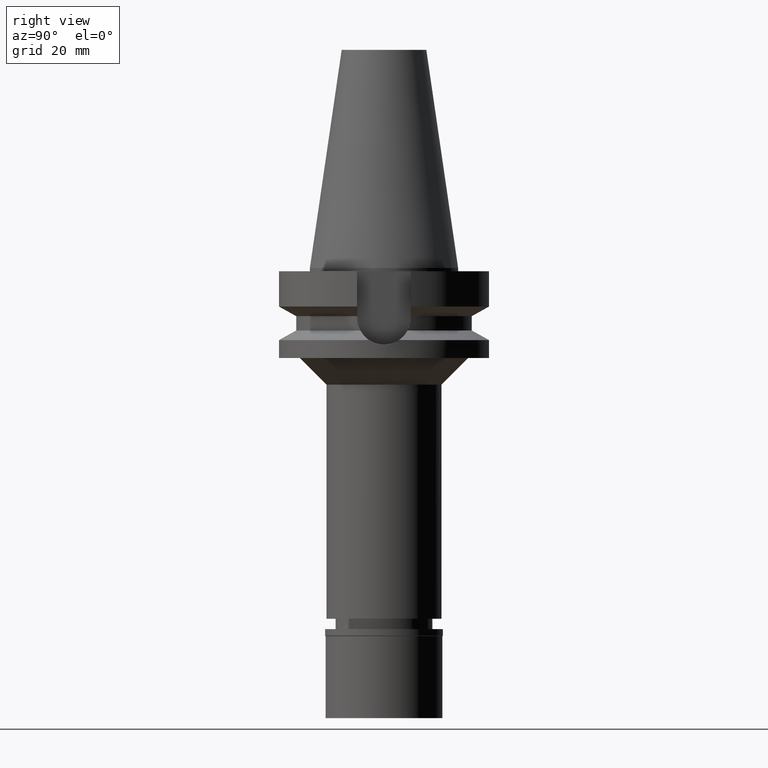
[diagram: clean part render]
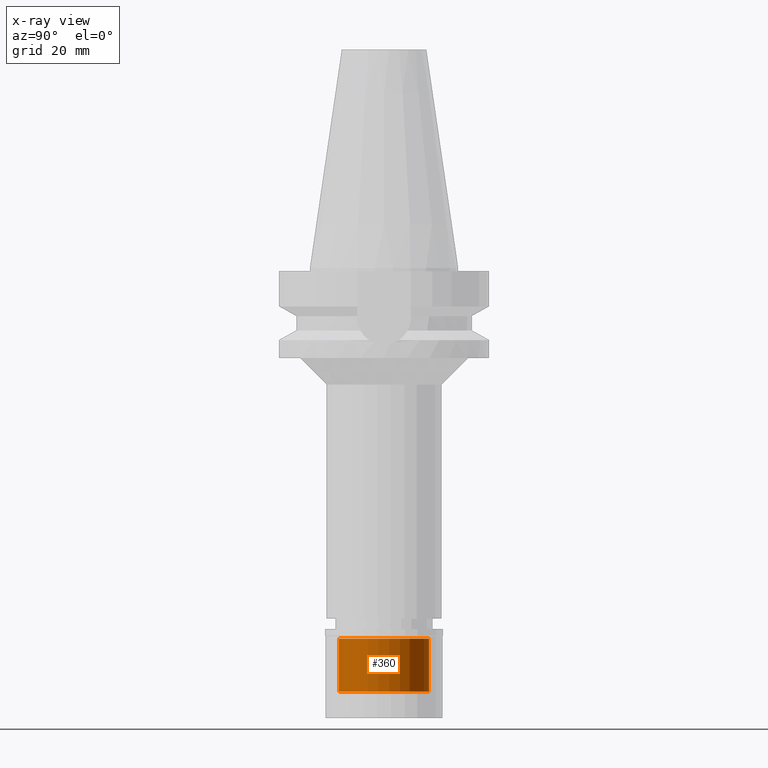
[diagram: x-ray — body ghosted, one internal face saturated and labeled with its STEP entity id]
A machine part, right view, then the same camera in x-ray: the body is ghosted and one INTERNAL B-rep face — a face not visible from any outside direction — is saturated and labeled: STEP entity #360.
In plain terms, the highlighted cylindrical surface (partial cylindrical patch) has radius 13.5 mm, axis along (0, 0, -1).
Its self-contained STEP definition (entity closure, byte-faithful):
#30 = LINE ( 'NONE', #1956, #242 ) ;
#93 = AXIS2_PLACEMENT_3D ( 'NONE', #928, #1862, #1380 ) ;
#107 = EDGE_LOOP ( 'NONE', ( #2240, #2760, #1013, #1489 ) ) ;
#181 = DIRECTION ( 'NONE',  ( 0.0000000000000000000, 0.0000000000000000000, 1.000000000000000000 ) ) ;
#242 = VECTOR ( 'NONE', #770, 1000.000000000000000 ) ;
#360 = ADVANCED_FACE ( 'NONE', ( #1669 ), #2114, .F. ) ;
#379 = VERTEX_POINT ( 'NONE', #1913 ) ;
#544 = CARTESIAN_POINT ( 'NONE',  ( 0.0000000000000000000, -13.50000000000000000, -18.70000000000000284 ) ) ;
#647 = AXIS2_PLACEMENT_3D ( 'NONE', #3084, #1181, #2625 ) ;
#658 = VERTEX_POINT ( 'NONE', #2960 ) ;
#770 = DIRECTION ( 'NONE',  ( 0.0000000000000000000, 0.0000000000000000000, 1.000000000000000000 ) ) ;
#827 = VERTEX_POINT ( 'NONE', #544 ) ;
#831 = EDGE_CURVE ( 'NONE', #379, #658, #30, .T. ) ;
#928 = CARTESIAN_POINT ( 'NONE',  ( 0.0000000000000000000, 0.0000000000000000000, -18.70000000000000284 ) ) ;
#1013 = ORIENTED_EDGE ( 'NONE', *, *, #2371, .T. ) ;
#1181 = DIRECTION ( 'NONE',  ( 0.0000000000000000000, 0.0000000000000000000, -1.000000000000000000 ) ) ;
#1380 = DIRECTION ( 'NONE',  ( 0.0000000000000000000, 1.000000000000000000, 0.0000000000000000000 ) ) ;
#1489 = ORIENTED_EDGE ( 'NONE', *, *, #831, .F. ) ;
#1504 = CARTESIAN_POINT ( 'NONE',  ( 0.0000000000000000000, 0.0000000000000000000, -2.899999999999999911 ) ) ;
#1589 = EDGE_CURVE ( 'NONE', #379, #827, #2759, .T. ) ;
#1594 = LINE ( 'NONE', #2338, #2946 ) ;
#1669 = FACE_OUTER_BOUND ( 'NONE', #107, .T. ) ;
#1699 = CIRCLE ( 'NONE', #2546, 13.50000000000000000 ) ;
#1862 = DIRECTION ( 'NONE',  ( 0.0000000000000000000, 0.0000000000000000000, -1.000000000000000000 ) ) ;
#1913 = CARTESIAN_POINT ( 'NONE',  ( 0.0000000000000000000, 13.50000000000000000, -18.70000000000000284 ) ) ;
#1956 = CARTESIAN_POINT ( 'NONE',  ( 0.0000000000000000000, 13.50000000000000000, -18.70000000000000284 ) ) ;
#2024 = DIRECTION ( 'NONE',  ( 0.0000000000000000000, -1.000000000000000000, 0.0000000000000000000 ) ) ;
#2114 = CYLINDRICAL_SURFACE ( 'NONE', #647, 13.50000000000000000 ) ;
#2233 = CARTESIAN_POINT ( 'NONE',  ( 0.0000000000000000000, -13.50000000000000000, -2.899999999999999911 ) ) ;
#2240 = ORIENTED_EDGE ( 'NONE', *, *, #1589, .T. ) ;
#2338 = CARTESIAN_POINT ( 'NONE',  ( 0.0000000000000000000, -13.50000000000000000, -18.70000000000000284 ) ) ;
#2371 = EDGE_CURVE ( 'NONE', #2993, #658, #1699, .T. ) ;
#2438 = DIRECTION ( 'NONE',  ( 0.0000000000000000000, 0.0000000000000000000, 1.000000000000000000 ) ) ;
#2546 = AXIS2_PLACEMENT_3D ( 'NONE', #1504, #2438, #2024 ) ;
#2625 = DIRECTION ( 'NONE',  ( 0.0000000000000000000, -1.000000000000000000, 0.0000000000000000000 ) ) ;
#2710 = EDGE_CURVE ( 'NONE', #827, #2993, #1594, .T. ) ;
#2759 = CIRCLE ( 'NONE', #93, 13.50000000000000000 ) ;
#2760 = ORIENTED_EDGE ( 'NONE', *, *, #2710, .T. ) ;
#2946 = VECTOR ( 'NONE', #181, 1000.000000000000000 ) ;
#2960 = CARTESIAN_POINT ( 'NONE',  ( 0.0000000000000000000, 13.50000000000000000, -2.899999999999999911 ) ) ;
#2993 = VERTEX_POINT ( 'NONE', #2233 ) ;
#3084 = CARTESIAN_POINT ( 'NONE',  ( 0.0000000000000000000, 0.0000000000000000000, 0.0000000000000000000 ) ) ;